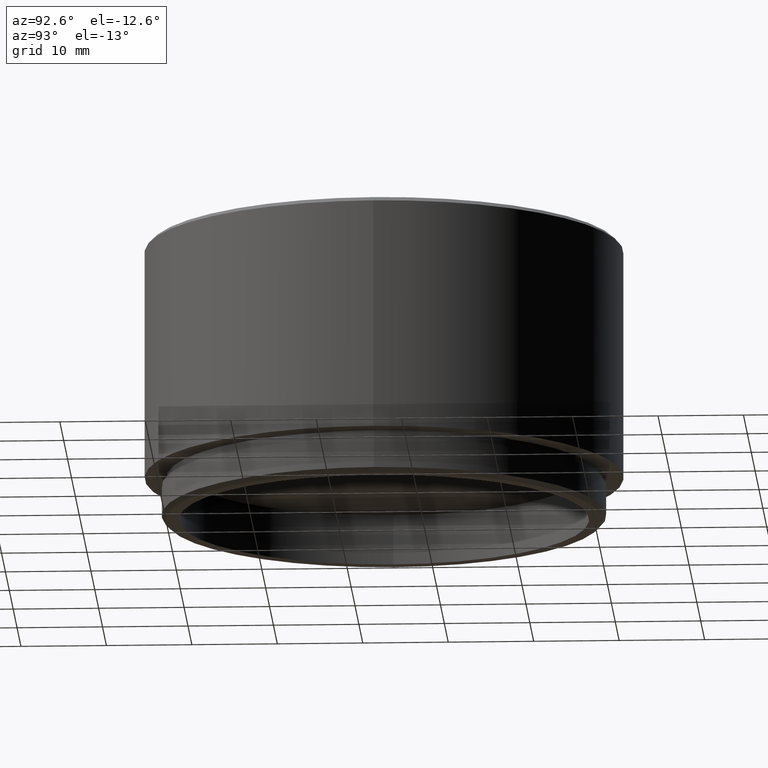
[diagram: clean part render]
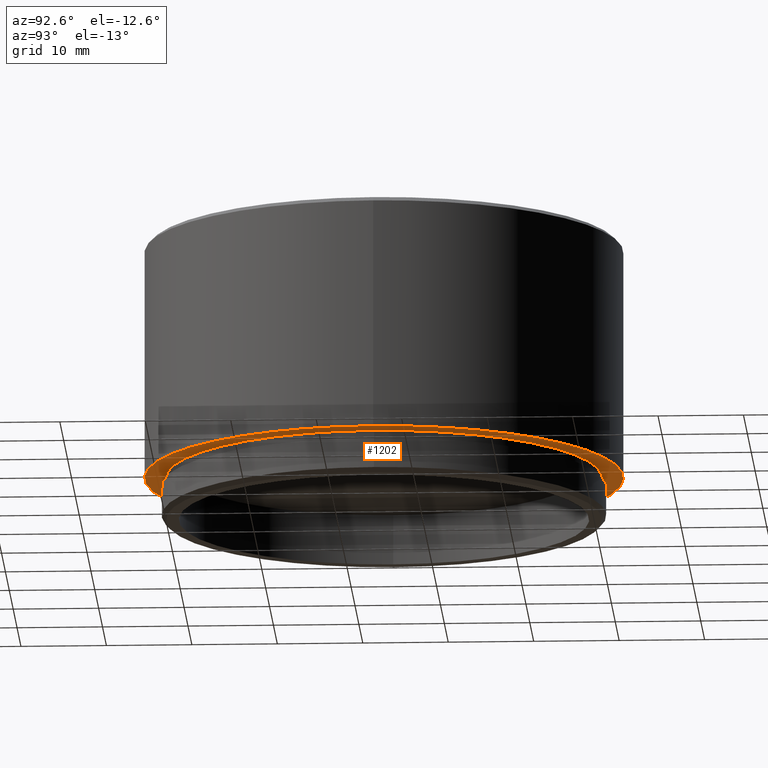
[diagram: same view with one face highlighted and labeled with its STEP entity id]
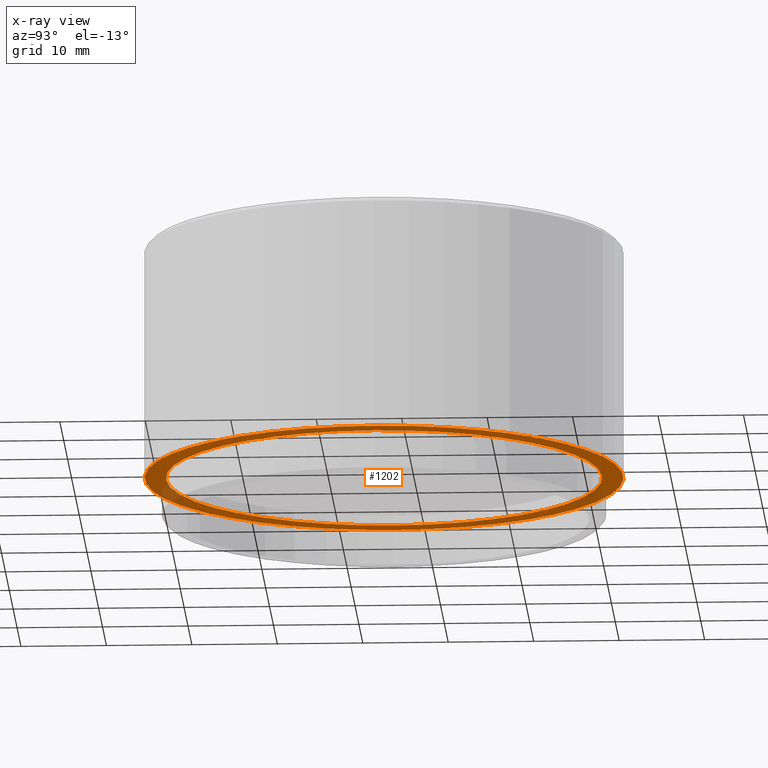
[diagram: x-ray of the same camera — body ghosted, the highlighted face saturated]
A machine part, auxiliary view. The second image highlights one B-rep face of the part: STEP entity #1202.
The next image is the same camera in x-ray: the body ghosted, the highlighted face saturated — about 10% of this face is hidden behind the body in this view.
In plain terms, the highlighted planar face has unit normal (0, 0, -1).
Its self-contained STEP definition (entity closure, byte-faithful):
#44 = EDGE_CURVE ( 'NONE', #583, #1616, #899, .T. ) ;
#75 = EDGE_CURVE ( 'NONE', #350, #1491, #1496, .T. ) ;
#125 = ORIENTED_EDGE ( 'NONE', *, *, #711, .T. ) ;
#128 = AXIS2_PLACEMENT_3D ( 'NONE', #1304, #486, #756 ) ;
#151 = AXIS2_PLACEMENT_3D ( 'NONE', #534, #1617, #1324 ) ;
#181 = AXIS2_PLACEMENT_3D ( 'NONE', #941, #642, #1466 ) ;
#222 = DIRECTION ( 'NONE',  ( 0.000000000000000000, 0.000000000000000000, -1.000000000000000000 ) ) ;
#273 = AXIS2_PLACEMENT_3D ( 'NONE', #1301, #610, #473 ) ;
#286 = ORIENTED_EDGE ( 'NONE', *, *, #1689, .F. ) ;
#341 = EDGE_LOOP ( 'NONE', ( #286, #460 ) ) ;
#350 = VERTEX_POINT ( 'NONE', #869 ) ;
#380 = AXIS2_PLACEMENT_3D ( 'NONE', #1564, #222, #1680 ) ;
#446 = CIRCLE ( 'NONE', #380, 28.00000000000000000 ) ;
#460 = ORIENTED_EDGE ( 'NONE', *, *, #44, .F. ) ;
#473 = DIRECTION ( 'NONE',  ( -1.000000000000000000, 0.000000000000000000, 0.000000000000000000 ) ) ;
#477 = CIRCLE ( 'NONE', #273, 25.50000000000000000 ) ;
#481 = FACE_OUTER_BOUND ( 'NONE', #1269, .T. ) ;
#486 = DIRECTION ( 'NONE',  ( 0.000000000000000000, 0.000000000000000000, -1.000000000000000000 ) ) ;
#521 = CARTESIAN_POINT ( 'NONE',  ( -25.50000000000000000, 3.122849337825750222E-15, 5.000000000000000000 ) ) ;
#534 = CARTESIAN_POINT ( 'NONE',  ( 0.000000000000000000, 0.000000000000000000, 5.000000000000000000 ) ) ;
#583 = VERTEX_POINT ( 'NONE', #521 ) ;
#610 = DIRECTION ( 'NONE',  ( 0.000000000000000000, 0.000000000000000000, -1.000000000000000000 ) ) ;
#611 = PLANE ( 'NONE',  #128 ) ;
#642 = DIRECTION ( 'NONE',  ( 0.000000000000000000, 0.000000000000000000, -1.000000000000000000 ) ) ;
#711 = EDGE_CURVE ( 'NONE', #1491, #350, #446, .T. ) ;
#756 = DIRECTION ( 'NONE',  ( -1.000000000000000000, 0.000000000000000000, -0.000000000000000000 ) ) ;
#869 = CARTESIAN_POINT ( 'NONE',  ( 28.00000000000000000, 3.429011037612589276E-15, 5.000000000000000000 ) ) ;
#899 = CIRCLE ( 'NONE', #151, 25.50000000000000000 ) ;
#941 = CARTESIAN_POINT ( 'NONE',  ( 0.000000000000000000, 0.000000000000000000, 5.000000000000000000 ) ) ;
#975 = CARTESIAN_POINT ( 'NONE',  ( -28.00000000000000000, 0.000000000000000000, 5.000000000000000000 ) ) ;
#1202 = ADVANCED_FACE ( 'NONE', ( #481, #1310 ), #611, .T. ) ;
#1269 = EDGE_LOOP ( 'NONE', ( #125, #1512 ) ) ;
#1301 = CARTESIAN_POINT ( 'NONE',  ( 0.000000000000000000, 0.000000000000000000, 5.000000000000000000 ) ) ;
#1304 = CARTESIAN_POINT ( 'NONE',  ( 0.000000000000000000, 0.000000000000000000, 5.000000000000000000 ) ) ;
#1310 = FACE_BOUND ( 'NONE', #341, .T. ) ;
#1324 = DIRECTION ( 'NONE',  ( -1.000000000000000000, 0.000000000000000000, 0.000000000000000000 ) ) ;
#1466 = DIRECTION ( 'NONE',  ( -1.000000000000000000, 0.000000000000000000, 0.000000000000000000 ) ) ;
#1491 = VERTEX_POINT ( 'NONE', #975 ) ;
#1496 = CIRCLE ( 'NONE', #181, 28.00000000000000000 ) ;
#1512 = ORIENTED_EDGE ( 'NONE', *, *, #75, .T. ) ;
#1561 = CARTESIAN_POINT ( 'NONE',  ( 25.50000000000000000, 0.000000000000000000, 5.000000000000000000 ) ) ;
#1564 = CARTESIAN_POINT ( 'NONE',  ( 0.000000000000000000, 0.000000000000000000, 5.000000000000000000 ) ) ;
#1616 = VERTEX_POINT ( 'NONE', #1561 ) ;
#1617 = DIRECTION ( 'NONE',  ( 0.000000000000000000, 0.000000000000000000, -1.000000000000000000 ) ) ;
#1680 = DIRECTION ( 'NONE',  ( -1.000000000000000000, 0.000000000000000000, 0.000000000000000000 ) ) ;
#1689 = EDGE_CURVE ( 'NONE', #1616, #583, #477, .T. ) ;